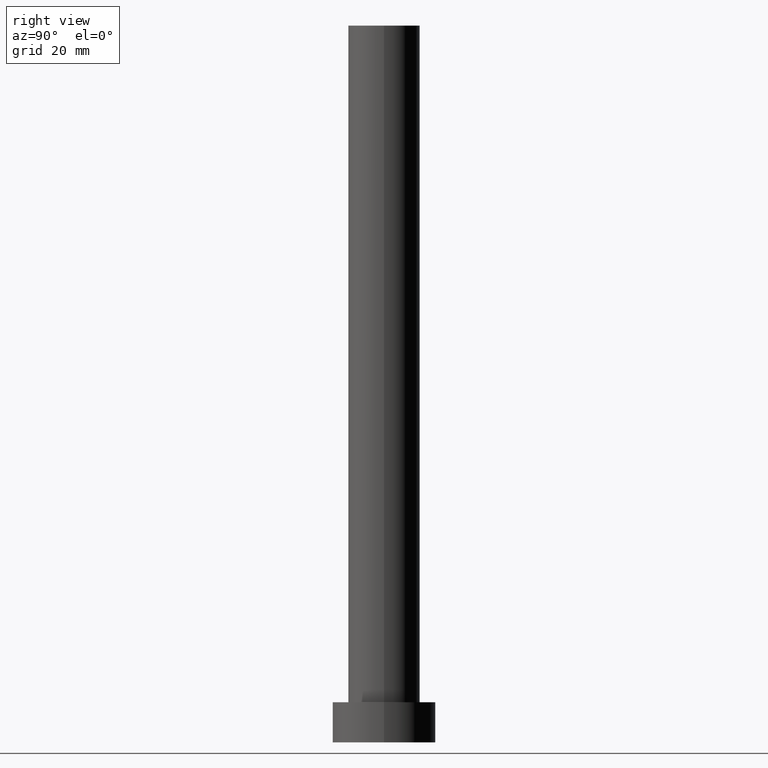
[diagram: clean part render]
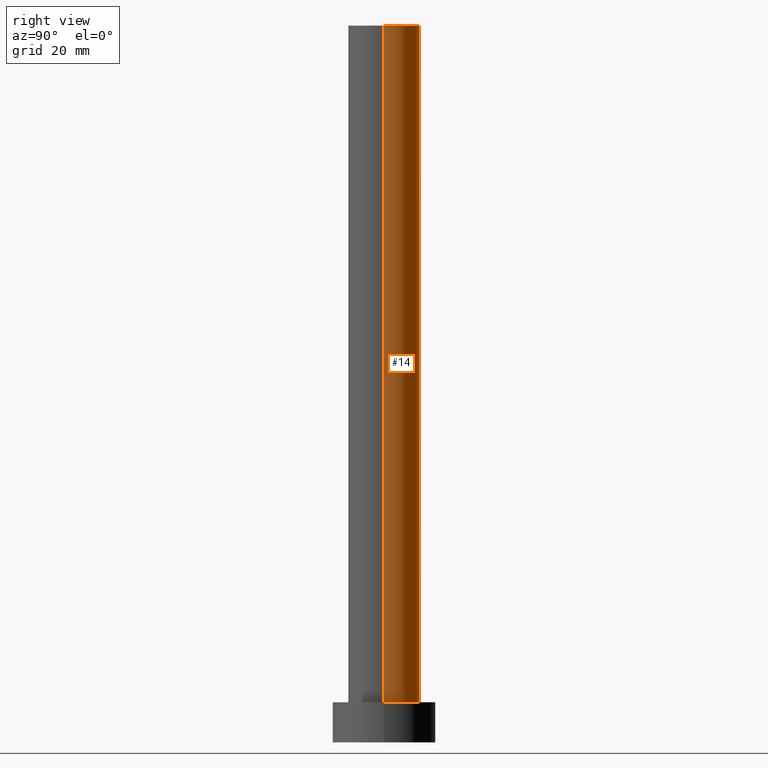
[diagram: same view with one face highlighted and labeled with its STEP entity id]
A machine part, right view. The second image highlights one B-rep face of the part: STEP entity #14.
In plain terms, the highlighted cylindrical surface (edge-blend (fillet) strip) has radius 6.25 mm, axis along (-0, -0, -1).
Its self-contained STEP definition (entity closure, byte-faithful):
#14 = ADVANCED_FACE ( 'NONE', ( #41 ), #20, .T. ) ;
#17 = CARTESIAN_POINT ( 'NONE',  ( -6.250000000000000000, 0.000000000000000000, 125.0000000000000000 ) ) ;
#20 = CYLINDRICAL_SURFACE ( 'NONE', #88, 6.250000000000000000 ) ;
#21 = EDGE_CURVE ( 'NONE', #212, #53, #73, .T. ) ;
#25 = CARTESIAN_POINT ( 'NONE',  ( 0.000000000000000000, 0.000000000000000000, 125.0000000000000000 ) ) ;
#33 = CARTESIAN_POINT ( 'NONE',  ( -6.250000000000000000, 0.000000000000000000, 125.0000000000000000 ) ) ;
#37 = VERTEX_POINT ( 'NONE', #215 ) ;
#38 = CARTESIAN_POINT ( 'NONE',  ( 0.000000000000000000, 0.000000000000000000, 125.0000000000000000 ) ) ;
#41 = FACE_OUTER_BOUND ( 'NONE', #152, .T. ) ;
#42 = CIRCLE ( 'NONE', #172, 6.250000000000000000 ) ;
#44 = DIRECTION ( 'NONE',  ( -0.000000000000000000, -0.000000000000000000, -1.000000000000000000 ) ) ;
#50 = DIRECTION ( 'NONE',  ( 0.000000000000000000, 0.000000000000000000, 1.000000000000000000 ) ) ;
#53 = VERTEX_POINT ( 'NONE', #17 ) ;
#59 = ORIENTED_EDGE ( 'NONE', *, *, #95, .F. ) ;
#71 = DIRECTION ( 'NONE',  ( -0.000000000000000000, -0.000000000000000000, -1.000000000000000000 ) ) ;
#73 = CIRCLE ( 'NONE', #175, 6.250000000000000000 ) ;
#75 = EDGE_CURVE ( 'NONE', #212, #37, #205, .T. ) ;
#88 = AXIS2_PLACEMENT_3D ( 'NONE', #25, #44, #247 ) ;
#95 = EDGE_CURVE ( 'NONE', #53, #227, #224, .T. ) ;
#96 = CARTESIAN_POINT ( 'NONE',  ( -6.250000000000000000, 0.000000000000000000, 7.000000000000000000 ) ) ;
#98 = DIRECTION ( 'NONE',  ( 1.000000000000000000, 0.000000000000000000, 0.000000000000000000 ) ) ;
#107 = VECTOR ( 'NONE', #225, 1000.000000000000000 ) ;
#113 = ORIENTED_EDGE ( 'NONE', *, *, #168, .T. ) ;
#125 = ORIENTED_EDGE ( 'NONE', *, *, #21, .F. ) ;
#144 = CARTESIAN_POINT ( 'NONE',  ( 0.000000000000000000, 0.000000000000000000, 7.000000000000000000 ) ) ;
#152 = EDGE_LOOP ( 'NONE', ( #125, #186, #113, #59 ) ) ;
#161 = CARTESIAN_POINT ( 'NONE',  ( 6.250000000000000000, 7.654042494670957606E-16, 125.0000000000000000 ) ) ;
#168 = EDGE_CURVE ( 'NONE', #37, #227, #42, .T. ) ;
#172 = AXIS2_PLACEMENT_3D ( 'NONE', #144, #50, #204 ) ;
#175 = AXIS2_PLACEMENT_3D ( 'NONE', #38, #245, #98 ) ;
#186 = ORIENTED_EDGE ( 'NONE', *, *, #75, .T. ) ;
#204 = DIRECTION ( 'NONE',  ( 1.000000000000000000, 0.000000000000000000, 0.000000000000000000 ) ) ;
#205 = LINE ( 'NONE', #161, #107 ) ;
#212 = VERTEX_POINT ( 'NONE', #233 ) ;
#215 = CARTESIAN_POINT ( 'NONE',  ( 6.250000000000000000, 7.654042494670957606E-16, 7.000000000000000000 ) ) ;
#224 = LINE ( 'NONE', #33, #229 ) ;
#225 = DIRECTION ( 'NONE',  ( -0.000000000000000000, -0.000000000000000000, -1.000000000000000000 ) ) ;
#227 = VERTEX_POINT ( 'NONE', #96 ) ;
#229 = VECTOR ( 'NONE', #71, 1000.000000000000000 ) ;
#233 = CARTESIAN_POINT ( 'NONE',  ( 6.250000000000000000, 7.654042494670957606E-16, 125.0000000000000000 ) ) ;
#245 = DIRECTION ( 'NONE',  ( 0.000000000000000000, 0.000000000000000000, 1.000000000000000000 ) ) ;
#247 = DIRECTION ( 'NONE',  ( -1.000000000000000000, 0.000000000000000000, 0.000000000000000000 ) ) ;